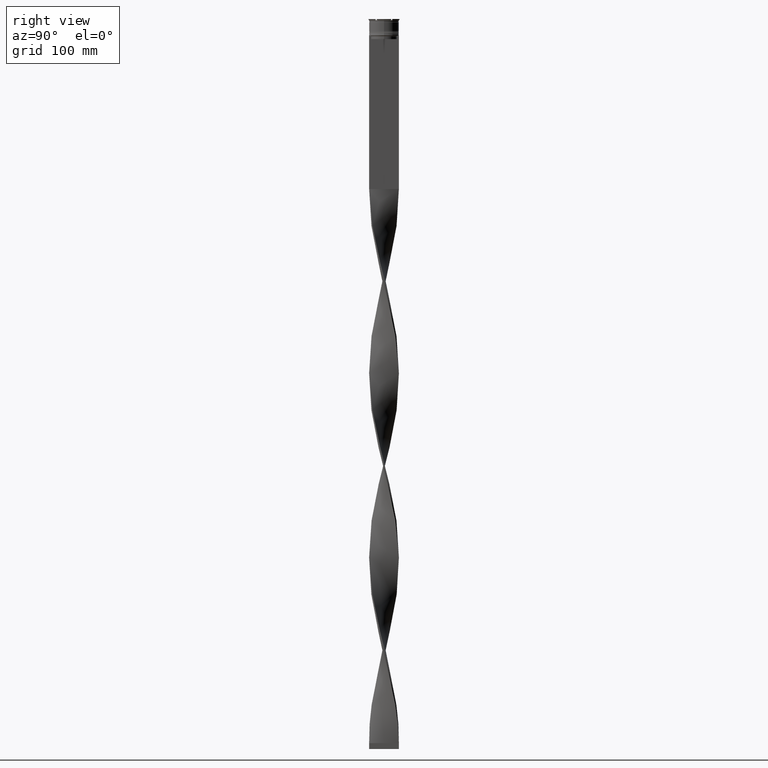
[diagram: clean part render]
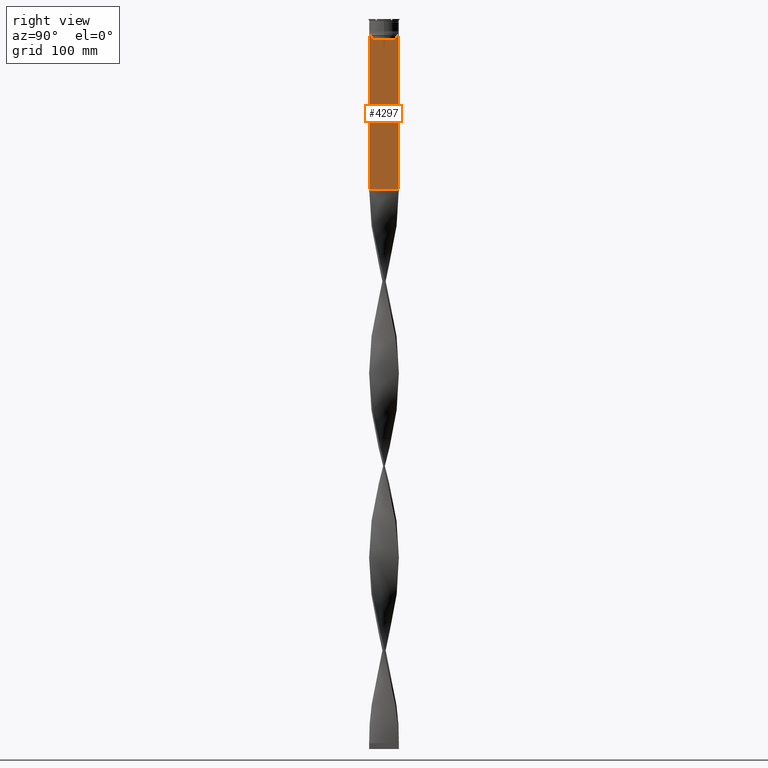
[diagram: same view with one face highlighted and labeled with its STEP entity id]
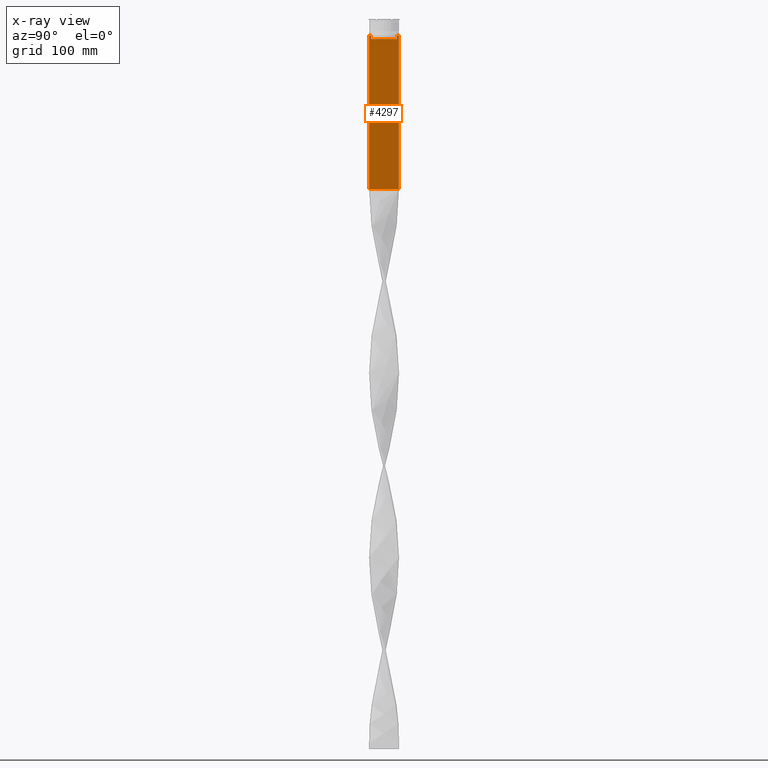
[diagram: x-ray of the same camera — body ghosted, the highlighted face saturated]
A machine part, right view. The second image highlights one B-rep face of the part: STEP entity #4297.
The next image is the same camera in x-ray: the body ghosted, the highlighted face saturated — about 0% of this face is hidden behind the body in this view.
In plain terms, the highlighted planar face has unit normal (-1, 0, 0).
Its self-contained STEP definition (entity closure, byte-faithful):
#49 = VECTOR ( 'NONE', #4799, 1000.000000000000000 ) ;
#50 = VECTOR ( 'NONE', #1716, 1000.000000000000000 ) ;
#69 = CARTESIAN_POINT ( 'NONE',  ( 0.7500000000000002220, 11.37530219378809093, -14.00000000000000178 ) ) ;
#86 = EDGE_CURVE ( 'NONE', #4239, #1474, #1087, .T. ) ;
#132 = VERTEX_POINT ( 'NONE', #1287 ) ;
#176 = ORIENTED_EDGE ( 'NONE', *, *, #742, .T. ) ;
#184 = ORIENTED_EDGE ( 'NONE', *, *, #3648, .T. ) ;
#204 = B_SPLINE_CURVE_WITH_KNOTS ( 'NONE', 3,
 ( #69, #3840, #1562, #459 ),
 .UNSPECIFIED., .F., .F.,
 ( 4, 4 ),
 ( 0.01936090553552769281, 0.02006881572333104116 ),
 .UNSPECIFIED. ) ;
#205 = EDGE_CURVE ( 'NONE', #1624, #4648, #204, .T. ) ;
#215 = EDGE_CURVE ( 'NONE', #1664, #2108, #3443, .T. ) ;
#237 = DIRECTION ( 'NONE',  ( 0.000000000000000000, -1.000000000000000000, 0.000000000000000000 ) ) ;
#263 = VECTOR ( 'NONE', #4088, 1000.000000000000000 ) ;
#324 = ORIENTED_EDGE ( 'NONE', *, *, #2731, .T. ) ;
#459 = CARTESIAN_POINT ( 'NONE',  ( 0.7500000000000002220, 10.87416663473574197, -14.50000000000000000 ) ) ;
#490 = ORIENTED_EDGE ( 'NONE', *, *, #3824, .F. ) ;
#645 = FACE_OUTER_BOUND ( 'NONE', #4825, .T. ) ;
#742 = EDGE_CURVE ( 'NONE', #1832, #1624, #1934, .T. ) ;
#746 = VECTOR ( 'NONE', #4121, 1000.000000000000000 ) ;
#838 = VECTOR ( 'NONE', #4409, 1000.000000000000000 ) ;
#877 = CARTESIAN_POINT ( 'NONE',  ( 0.7500000000000002220, -10.87416663473574197, -14.50000000000000000 ) ) ;
#1087 = LINE ( 'NONE', #2585, #263 ) ;
#1096 = CARTESIAN_POINT ( 'NONE',  ( 0.7500000000000002220, -10.87416663473574019, -17.00000000000000000 ) ) ;
#1175 = ORIENTED_EDGE ( 'NONE', *, *, #3680, .T. ) ;
#1287 = CARTESIAN_POINT ( 'NONE',  ( 0.7500000000000002220, 12.50000000000000000, -14.00000000000000178 ) ) ;
#1306 = ORIENTED_EDGE ( 'NONE', *, *, #3977, .T. ) ;
#1323 = LINE ( 'NONE', #2802, #50 ) ;
#1333 = DIRECTION ( 'NONE',  ( -0.000000000000000000, -0.000000000000000000, 1.000000000000000000 ) ) ;
#1354 = CARTESIAN_POINT ( 'NONE',  ( 0.7500000000000002220, -12.50000000000000000, -143.0000000000000284 ) ) ;
#1360 = DIRECTION ( 'NONE',  ( 0.000000000000000000, 0.000000000000000000, -1.000000000000000000 ) ) ;
#1378 = CARTESIAN_POINT ( 'NONE',  ( 0.7500000000000002220, -12.50000000000000000, -14.00000000000000178 ) ) ;
#1474 = VERTEX_POINT ( 'NONE', #1378 ) ;
#1557 = CARTESIAN_POINT ( 'NONE',  ( 0.7500000000000002220, -10.87416663473574197, -14.50000000000000000 ) ) ;
#1562 = CARTESIAN_POINT ( 'NONE',  ( 0.7500000000000002220, 11.04122051153452055, -14.33334204648729404 ) ) ;
#1624 = VERTEX_POINT ( 'NONE', #4247 ) ;
#1664 = VERTEX_POINT ( 'NONE', #2044 ) ;
#1716 = DIRECTION ( 'NONE',  ( 0.000000000000000000, 1.000000000000000000, 0.000000000000000000 ) ) ;
#1777 = CARTESIAN_POINT ( 'NONE',  ( 0.7500000000000002220, 10.90000000000000213, -17.00000000000000000 ) ) ;
#1832 = VERTEX_POINT ( 'NONE', #2501 ) ;
#1839 = DIRECTION ( 'NONE',  ( -1.000000000000000000, 0.000000000000000000, 0.000000000000000000 ) ) ;
#1892 = LINE ( 'NONE', #3408, #746 ) ;
#1918 = AXIS2_PLACEMENT_3D ( 'NONE', #2189, #1839, #3707 ) ;
#1934 = LINE ( 'NONE', #3354, #3966 ) ;
#2044 = CARTESIAN_POINT ( 'NONE',  ( 0.7500000000000002220, 10.87416663473574019, -17.00000000000000000 ) ) ;
#2057 = EDGE_CURVE ( 'NONE', #2442, #4239, #1892, .T. ) ;
#2108 = VERTEX_POINT ( 'NONE', #1096 ) ;
#2189 = CARTESIAN_POINT ( 'NONE',  ( 0.7500000000000002220, -12.50000000000000000, 11.04495957273638673 ) ) ;
#2224 = VECTOR ( 'NONE', #237, 1000.000000000000000 ) ;
#2363 = ORIENTED_EDGE ( 'NONE', *, *, #205, .T. ) ;
#2405 = CARTESIAN_POINT ( 'NONE',  ( 0.7500000000000002220, 12.50000000000000000, -143.0000000000000284 ) ) ;
#2442 = VERTEX_POINT ( 'NONE', #4257 ) ;
#2449 = ORIENTED_EDGE ( 'NONE', *, *, #4237, .T. ) ;
#2464 = ORIENTED_EDGE ( 'NONE', *, *, #86, .T. ) ;
#2501 = CARTESIAN_POINT ( 'NONE',  ( 0.7500000000000002220, 12.37729776647553059, -14.00000000000000178 ) ) ;
#2537 = CARTESIAN_POINT ( 'NONE',  ( 0.7500000000000002220, -12.37729776647553059, -14.00000000000000178 ) ) ;
#2583 = B_SPLINE_CURVE_WITH_KNOTS ( 'NONE', 3,
 ( #1557, #3067, #3116, #3438 ),
 .UNSPECIFIED., .F., .F.,
 ( 4, 4 ),
 ( 0.05009718908159448147, 0.05081156920313959630 ),
 .UNSPECIFIED. ) ;
#2585 = CARTESIAN_POINT ( 'NONE',  ( 0.7500000000000002220, -12.50000000000000000, -14.00000000000000178 ) ) ;
#2591 = CARTESIAN_POINT ( 'NONE',  ( 0.7500000000000002220, -12.50000000000000000, -14.00000000000000178 ) ) ;
#2606 = ORIENTED_EDGE ( 'NONE', *, *, #215, .T. ) ;
#2668 = CARTESIAN_POINT ( 'NONE',  ( 0.7500000000000002220, 12.50000000000000000, 11.04495957273638673 ) ) ;
#2731 = EDGE_CURVE ( 'NONE', #4079, #3227, #1323, .T. ) ;
#2763 = LINE ( 'NONE', #2668, #3988 ) ;
#2802 = CARTESIAN_POINT ( 'NONE',  ( 0.7500000000000002220, -12.50000000000000000, -143.0000000000000284 ) ) ;
#2912 = LINE ( 'NONE', #4049, #838 ) ;
#3067 = CARTESIAN_POINT ( 'NONE',  ( 0.7500000000000002220, -11.04122051801870441, -14.33334204001847567 ) ) ;
#3116 = CARTESIAN_POINT ( 'NONE',  ( 0.7500000000000002220, -11.20826532207830439, -14.16667499063191826 ) ) ;
#3227 = VERTEX_POINT ( 'NONE', #2405 ) ;
#3262 = CARTESIAN_POINT ( 'NONE',  ( 0.7500000000000002220, -12.50000000000000000, 11.04495957273638673 ) ) ;
#3271 = VECTOR ( 'NONE', #1360, 1000.000000000000000 ) ;
#3300 = ORIENTED_EDGE ( 'NONE', *, *, #2057, .T. ) ;
#3341 = EDGE_CURVE ( 'NONE', #1474, #4079, #4760, .T. ) ;
#3354 = CARTESIAN_POINT ( 'NONE',  ( 0.7500000000000002220, -12.50000000000000000, -14.00000000000000178 ) ) ;
#3408 = CARTESIAN_POINT ( 'NONE',  ( 0.7500000000000002220, -12.50000000000000000, -14.00000000000000178 ) ) ;
#3438 = CARTESIAN_POINT ( 'NONE',  ( 0.7500000000000002220, -11.37530219378809093, -14.00000000000000178 ) ) ;
#3443 = LINE ( 'NONE', #1777, #2224 ) ;
#3448 = DIRECTION ( 'NONE',  ( 0.000000000000000000, -1.000000000000000000, 0.000000000000000000 ) ) ;
#3611 = CARTESIAN_POINT ( 'NONE',  ( 0.7500000000000002220, -10.87416663473574197, 0.000000000000000000 ) ) ;
#3648 = EDGE_CURVE ( 'NONE', #4648, #1664, #2912, .T. ) ;
#3680 = EDGE_CURVE ( 'NONE', #4563, #2442, #2583, .T. ) ;
#3707 = DIRECTION ( 'NONE',  ( 0.000000000000000000, 0.000000000000000000, 1.000000000000000000 ) ) ;
#3824 = EDGE_CURVE ( 'NONE', #132, #3227, #2763, .T. ) ;
#3840 = CARTESIAN_POINT ( 'NONE',  ( 0.7500000000000002220, 11.20826531587977648, -14.16667499681701514 ) ) ;
#3925 = LINE ( 'NONE', #3611, #4763 ) ;
#3966 = VECTOR ( 'NONE', #3448, 1000.000000000000000 ) ;
#3977 = EDGE_CURVE ( 'NONE', #2108, #4563, #3925, .T. ) ;
#3988 = VECTOR ( 'NONE', #4171, 1000.000000000000000 ) ;
#4049 = CARTESIAN_POINT ( 'NONE',  ( 0.7500000000000002220, 10.87416663473574197, 0.000000000000000000 ) ) ;
#4079 = VERTEX_POINT ( 'NONE', #1354 ) ;
#4088 = DIRECTION ( 'NONE',  ( 0.000000000000000000, -1.000000000000000000, 0.000000000000000000 ) ) ;
#4091 = ORIENTED_EDGE ( 'NONE', *, *, #3341, .T. ) ;
#4121 = DIRECTION ( 'NONE',  ( 0.000000000000000000, -1.000000000000000000, 0.000000000000000000 ) ) ;
#4171 = DIRECTION ( 'NONE',  ( 0.000000000000000000, 0.000000000000000000, -1.000000000000000000 ) ) ;
#4237 = EDGE_CURVE ( 'NONE', #132, #1832, #4822, .T. ) ;
#4239 = VERTEX_POINT ( 'NONE', #2537 ) ;
#4247 = CARTESIAN_POINT ( 'NONE',  ( 0.7500000000000002220, 11.37530219378809093, -14.00000000000000178 ) ) ;
#4257 = CARTESIAN_POINT ( 'NONE',  ( 0.7500000000000002220, -11.37530219378809093, -14.00000000000000178 ) ) ;
#4297 = ADVANCED_FACE ( 'NONE', ( #645 ), #4426, .F. ) ;
#4409 = DIRECTION ( 'NONE',  ( 0.000000000000000000, 0.000000000000000000, -1.000000000000000000 ) ) ;
#4426 = PLANE ( 'NONE',  #1918 ) ;
#4563 = VERTEX_POINT ( 'NONE', #877 ) ;
#4648 = VERTEX_POINT ( 'NONE', #4727 ) ;
#4727 = CARTESIAN_POINT ( 'NONE',  ( 0.7500000000000002220, 10.87416663473574197, -14.50000000000000000 ) ) ;
#4760 = LINE ( 'NONE', #3262, #3271 ) ;
#4763 = VECTOR ( 'NONE', #1333, 1000.000000000000000 ) ;
#4799 = DIRECTION ( 'NONE',  ( 0.000000000000000000, -1.000000000000000000, 0.000000000000000000 ) ) ;
#4822 = LINE ( 'NONE', #2591, #49 ) ;
#4825 = EDGE_LOOP ( 'NONE', ( #176, #2363, #184, #2606, #1306, #1175, #3300, #2464, #4091, #324, #490, #2449 ) ) ;